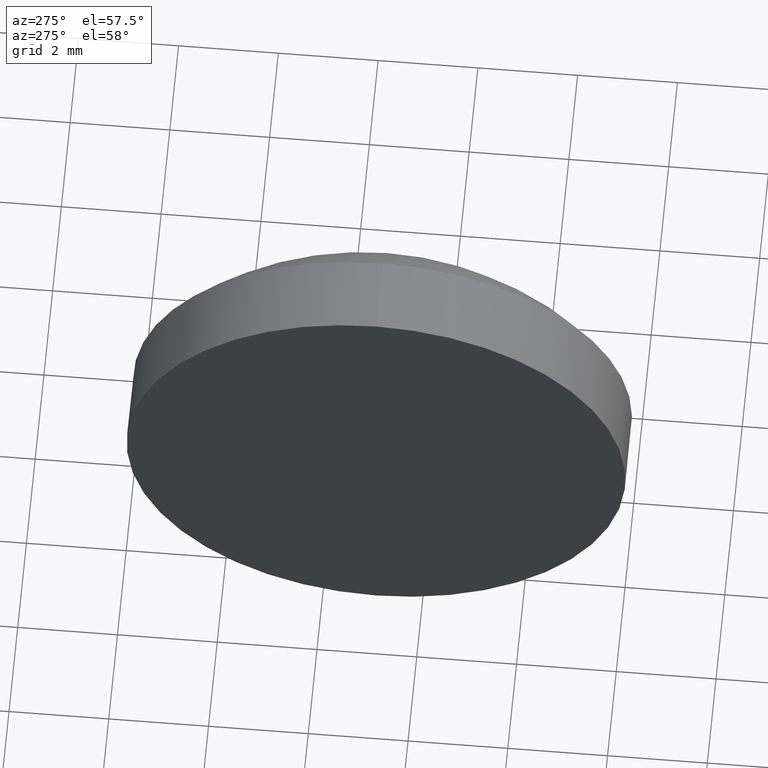
[diagram: clean part render]
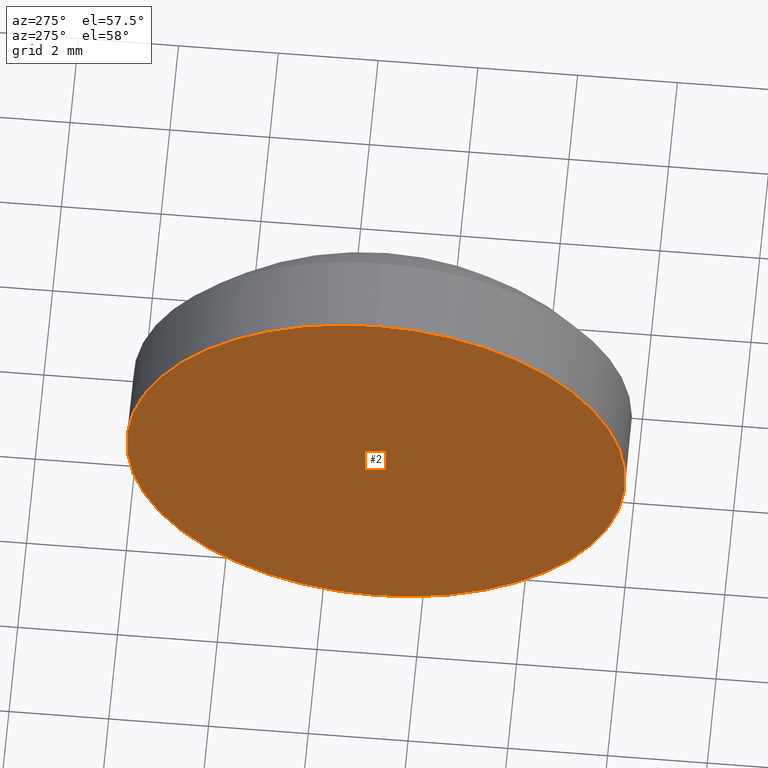
[diagram: same view with one face highlighted and labeled with its STEP entity id]
A machine part, auxiliary view. The second image highlights one B-rep face of the part: STEP entity #2.
In plain terms, the highlighted planar face has unit normal (1, 0, 0).
Its self-contained STEP definition (entity closure, byte-faithful):
#2 = ADVANCED_FACE ( 'NONE', ( #139 ), #18, .F. ) ;
#5 = ORIENTED_EDGE ( 'NONE', *, *, #120, .T. ) ;
#18 = PLANE ( 'NONE',  #137 ) ;
#19 = CARTESIAN_POINT ( 'NONE',  ( 447.2368931429505200, 96.92527297599599500, -5.000000000000004400 ) ) ;
#27 = DIRECTION ( 'NONE',  ( 0.0000000000000000000, 0.0000000000000000000, 1.000000000000000000 ) ) ;
#28 = DIRECTION ( 'NONE',  ( -1.000000000000000000, -0.0000000000000000000, -0.0000000000000000000 ) ) ;
#43 = DIRECTION ( 'NONE',  ( 1.000000000000000000, 0.0000000000000000000, 0.0000000000000000000 ) ) ;
#44 = VERTEX_POINT ( 'NONE', #90 ) ;
#54 = ORIENTED_EDGE ( 'NONE', *, *, #166, .T. ) ;
#55 = CARTESIAN_POINT ( 'NONE',  ( 447.2368931429505200, 96.92527297599599500, 0.0000000000000000000 ) ) ;
#57 = DIRECTION ( 'NONE',  ( 0.0000000000000000000, 0.0000000000000000000, -1.000000000000000000 ) ) ;
#58 = CARTESIAN_POINT ( 'NONE',  ( 447.2368931429505200, 96.92527297599599500, 0.0000000000000000000 ) ) ;
#74 = AXIS2_PLACEMENT_3D ( 'NONE', #58, #28, #27 ) ;
#83 = VERTEX_POINT ( 'NONE', #19 ) ;
#90 = CARTESIAN_POINT ( 'NONE',  ( 447.2368931429505200, 96.92527297599599500, 5.000000000000004400 ) ) ;
#98 = CARTESIAN_POINT ( 'NONE',  ( 447.2368931429505200, 96.92527297599599500, 0.0000000000000000000 ) ) ;
#99 = AXIS2_PLACEMENT_3D ( 'NONE', #98, #170, #181 ) ;
#105 = CIRCLE ( 'NONE', #99, 5.000000000000004400 ) ;
#115 = CIRCLE ( 'NONE', #74, 5.000000000000004400 ) ;
#117 = EDGE_LOOP ( 'NONE', ( #5, #54 ) ) ;
#120 = EDGE_CURVE ( 'NONE', #44, #83, #115, .T. ) ;
#137 = AXIS2_PLACEMENT_3D ( 'NONE', #55, #43, #57 ) ;
#139 = FACE_OUTER_BOUND ( 'NONE', #117, .T. ) ;
#166 = EDGE_CURVE ( 'NONE', #83, #44, #105, .T. ) ;
#170 = DIRECTION ( 'NONE',  ( -1.000000000000000000, -0.0000000000000000000, -0.0000000000000000000 ) ) ;
#181 = DIRECTION ( 'NONE',  ( 0.0000000000000000000, 0.0000000000000000000, 1.000000000000000000 ) ) ;